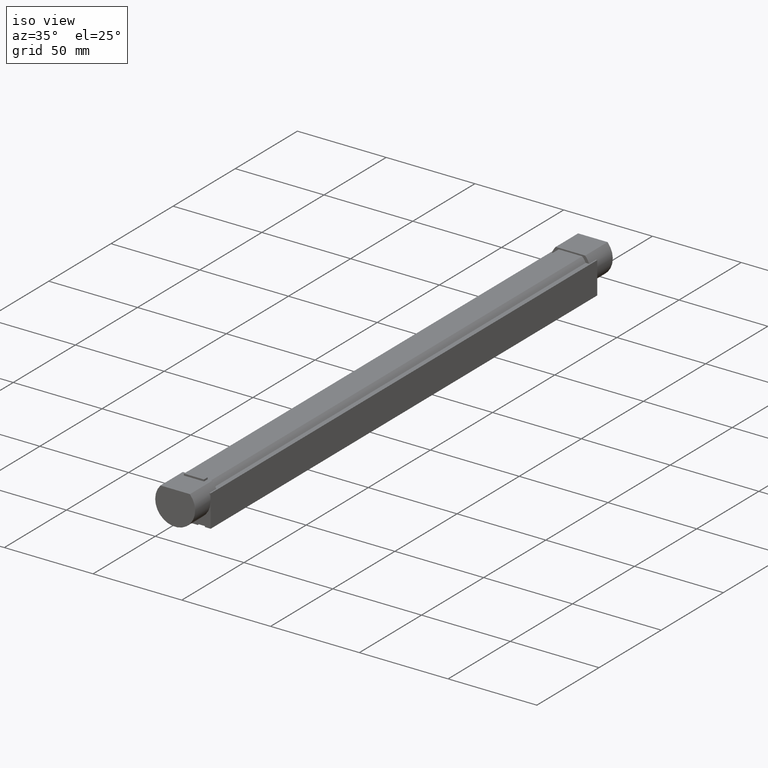
[diagram: clean part render]
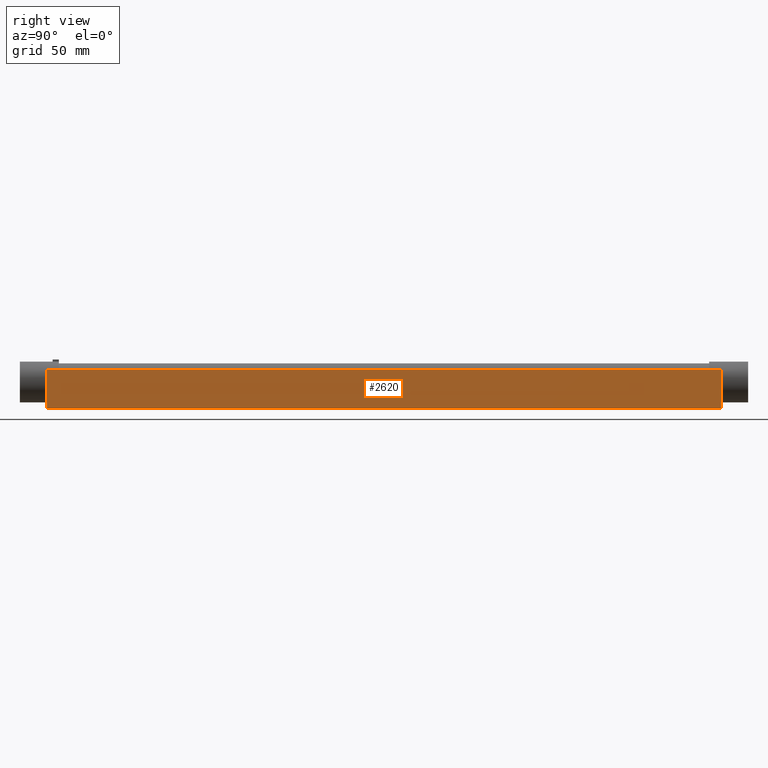
[diagram: tour spotlight — one face highlighted and labeled with its STEP entity id]
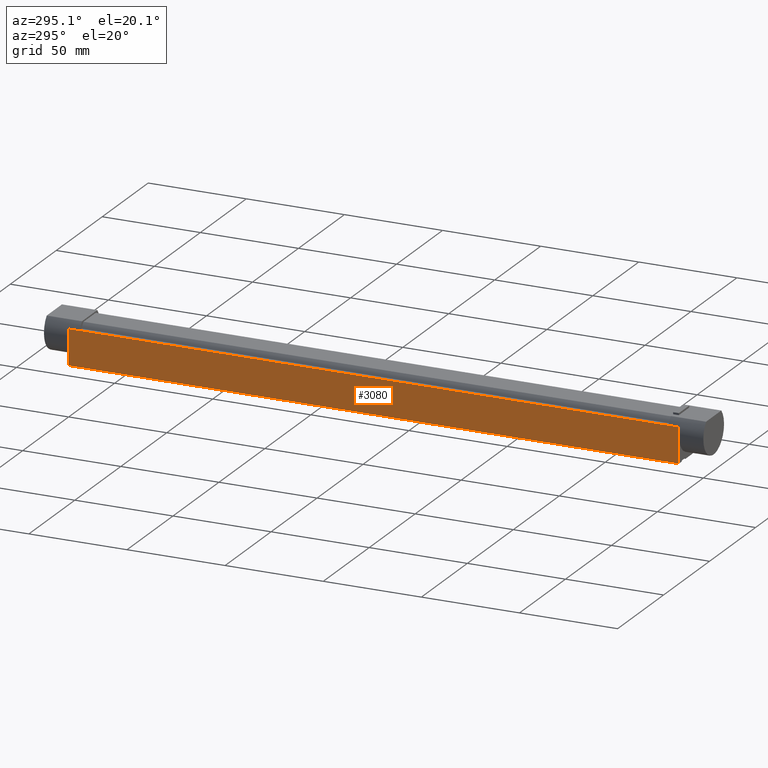
[diagram: tour spotlight — one face highlighted and labeled with its STEP entity id]
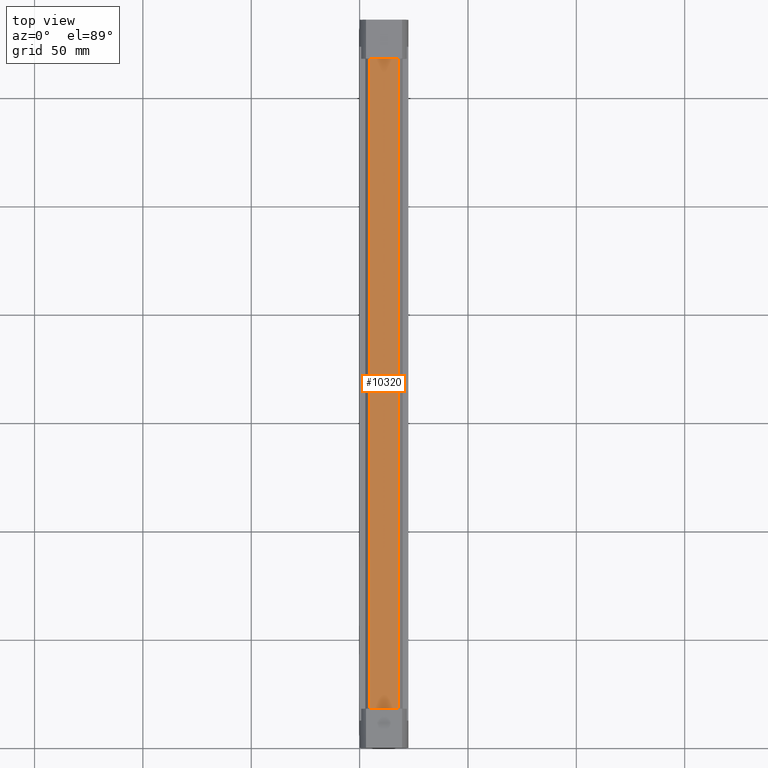
[diagram: tour spotlight — one face highlighted and labeled with its STEP entity id]
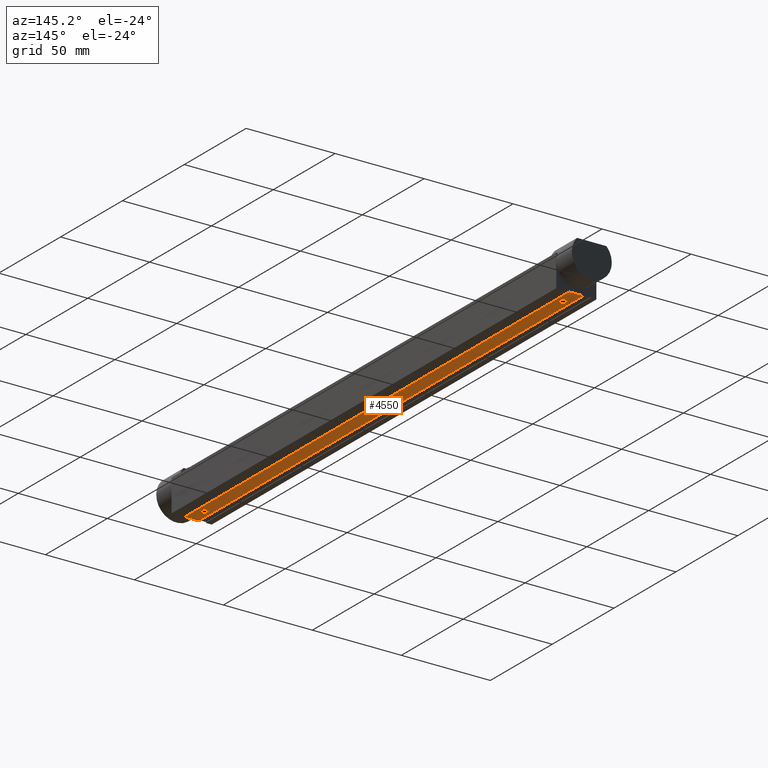
[diagram: tour spotlight — one face highlighted and labeled with its STEP entity id]
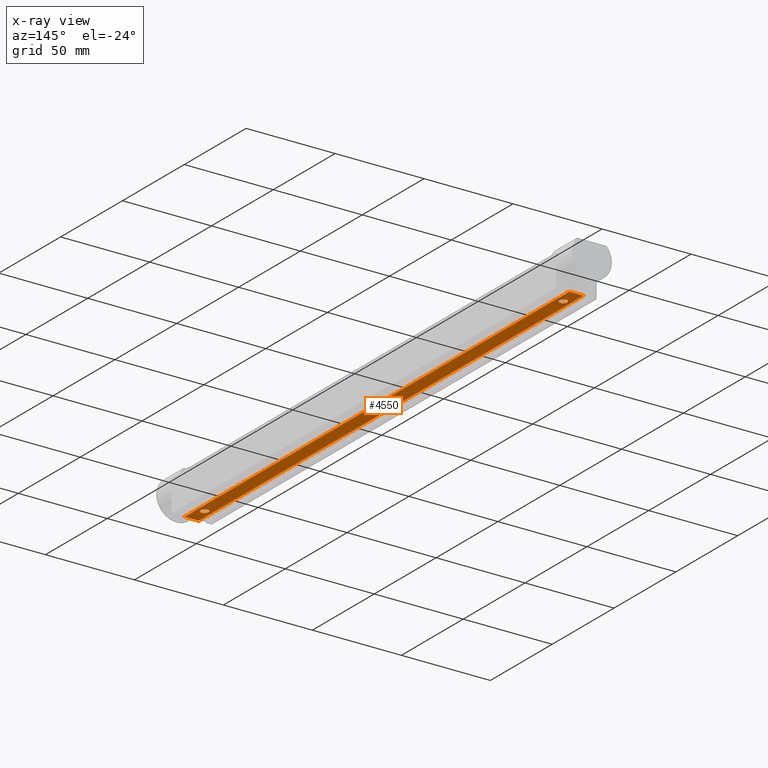
[diagram: x-ray of the same camera — body ghosted, this tour face saturated]
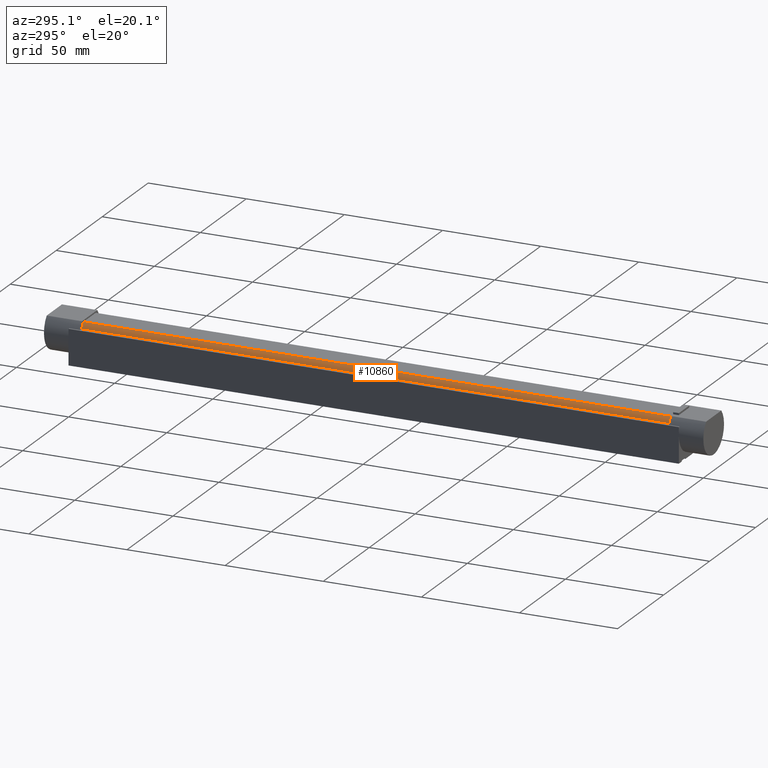
[diagram: tour spotlight — one face highlighted and labeled with its STEP entity id]
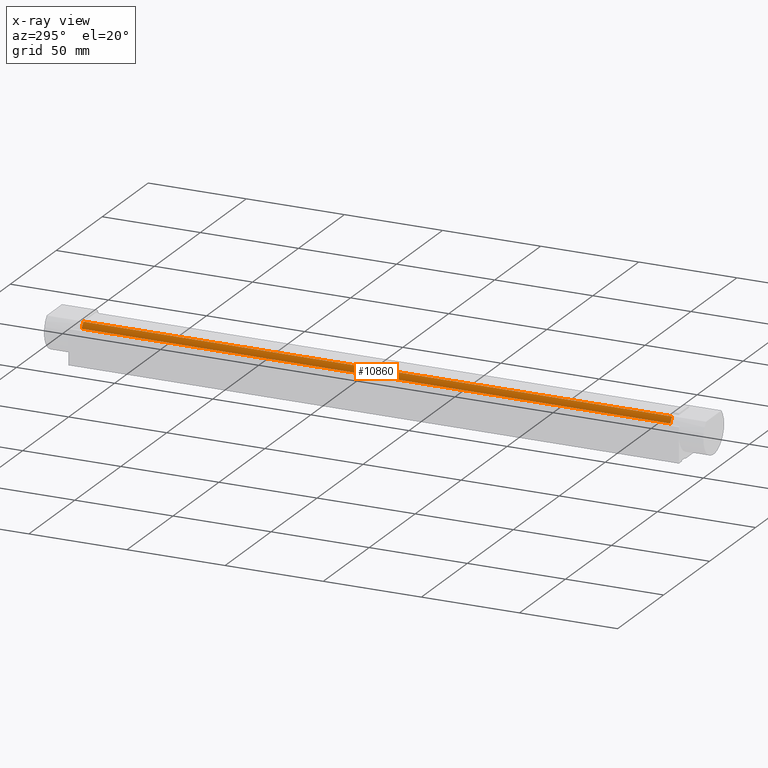
[diagram: x-ray of the same camera — body ghosted, this tour face saturated]
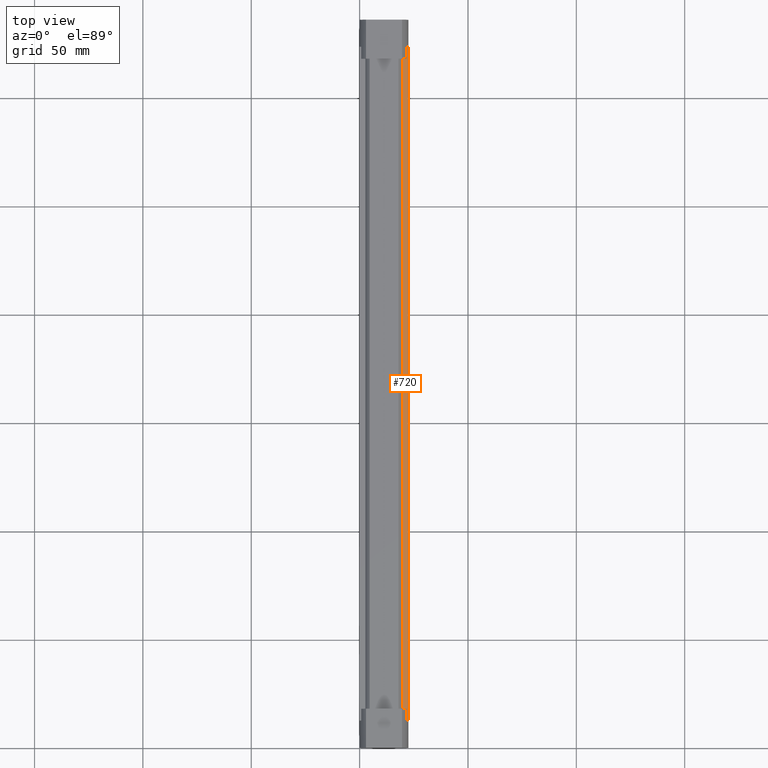
[diagram: tour spotlight — one face highlighted and labeled with its STEP entity id]
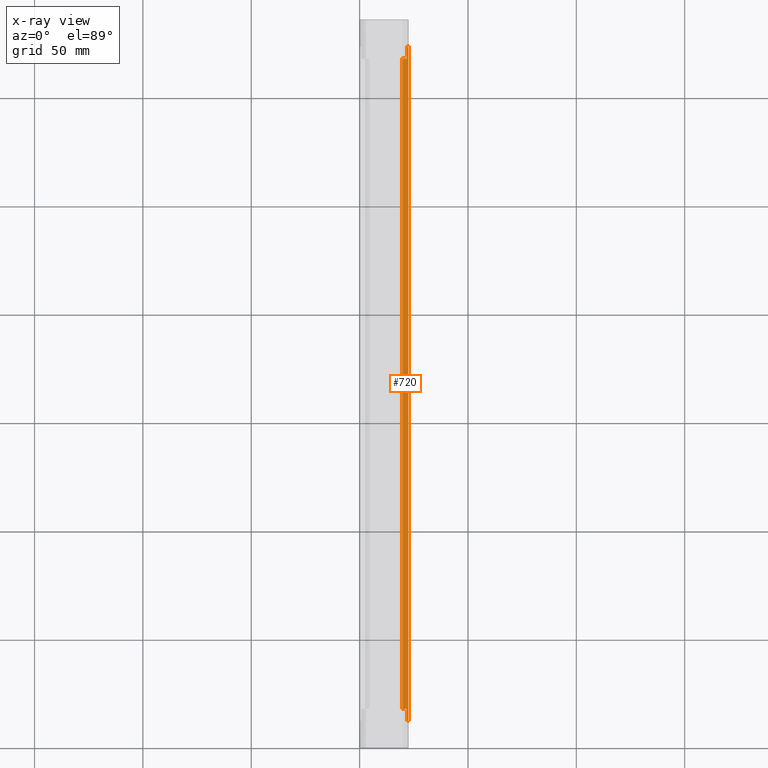
[diagram: x-ray of the same camera — body ghosted, this tour face saturated]
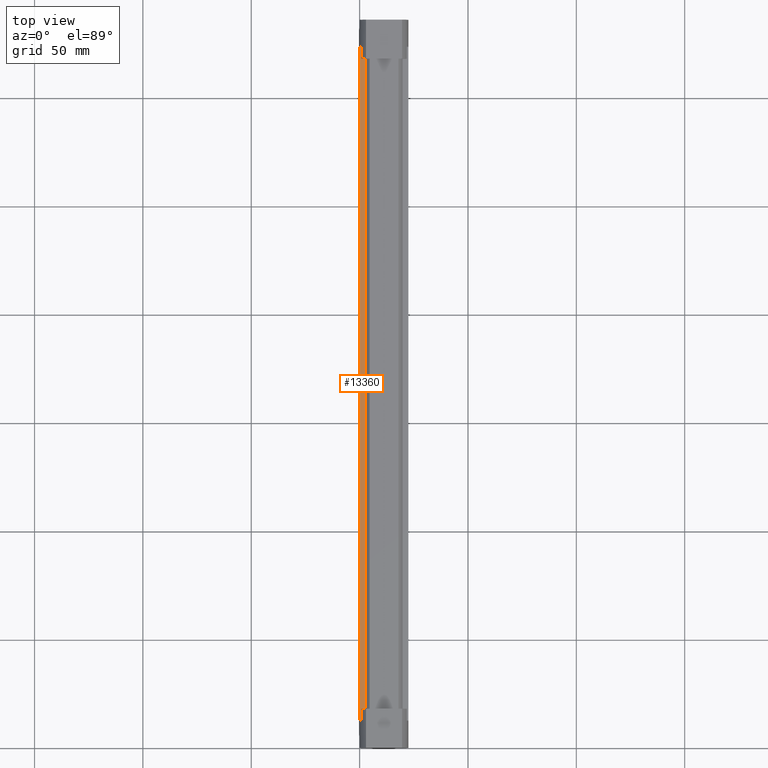
[diagram: tour spotlight — one face highlighted and labeled with its STEP entity id]
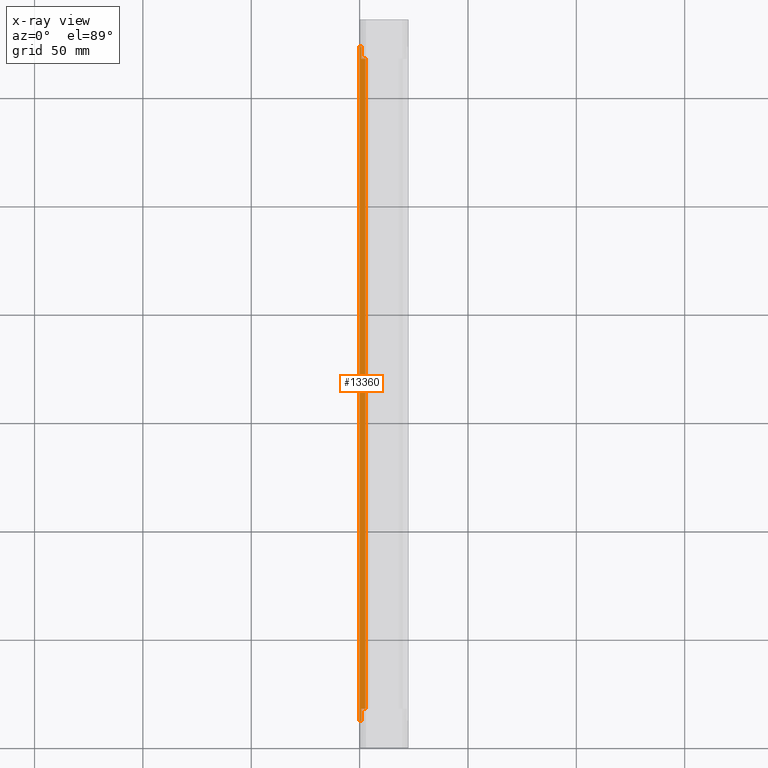
[diagram: x-ray of the same camera — body ghosted, this tour face saturated]
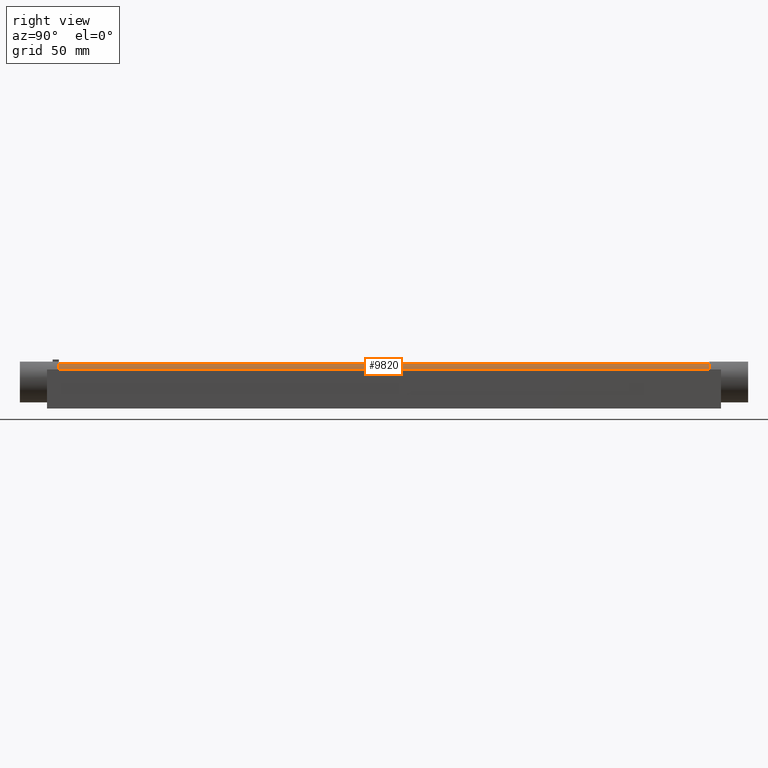
[diagram: tour spotlight — one face highlighted and labeled with its STEP entity id]
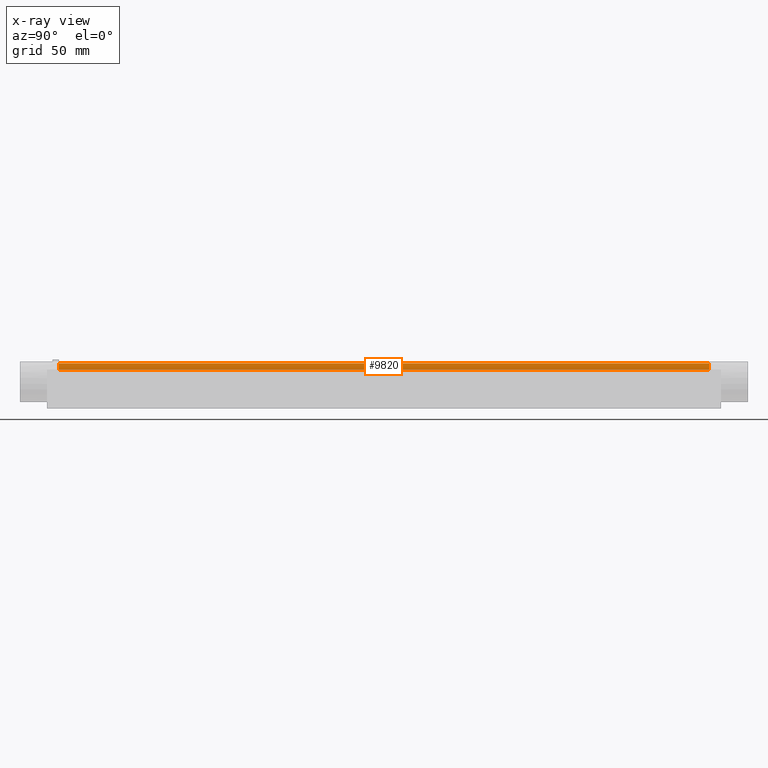
[diagram: x-ray of the same camera — body ghosted, this tour face saturated]
A machine part: a face-by-face anatomy tour. The part has 40 B-rep faces; the first image is the clean iso view, then the 8 largest visible faces are spotlighted one at a time (largest first), each with its STEP entity span.

Face 1 — right view, entity #2620. In plain terms, the highlighted planar face has unit normal (-1, 0, 0).
Definition (entity closure, byte-faithful):
#100=CARTESIAN_POINT('',(12.5,11.25,-22.));
#110=VERTEX_POINT('',#100);
#600=CARTESIAN_POINT('',(323.5,11.25,-22.));
#610=VERTEX_POINT('',#600);
#640=CARTESIAN_POINT('',(0.,11.25,-22.));
#650=DIRECTION('',(-1.,0.,0.));
#660=VECTOR('',#650,1.);
#670=LINE('',#640,#660);
#680=EDGE_CURVE('',#610,#110,#670,.T.);
#1630=CARTESIAN_POINT('',(12.5,11.2492250572074,-18.));
#1640=VERTEX_POINT('',#1630);
#1680=CARTESIAN_POINT('',(12.5,11.25,0.));
#1690=DIRECTION('',(0.,0.,-1.));
#1700=VECTOR('',#1690,1.);
#1710=LINE('',#1680,#1700);
#1720=EDGE_CURVE('',#1640,#110,#1710,.T.);
#2310=CARTESIAN_POINT('',(106.55,11.25,-20.8));
#2320=DIRECTION('',(0.,-1.,0.));
#2330=DIRECTION('',(0.,0.,-1.));
#2340=AXIS2_PLACEMENT_3D('',#2310,#2320,#2330);
#2350=PLANE('',#2340);
#2360=CARTESIAN_POINT('',(323.5,11.25,0.));
#2370=DIRECTION('',(0.,0.,-1.));
#2380=VECTOR('',#2370,1.);
#2390=LINE('',#2360,#2380);
#2400=CARTESIAN_POINT('',(323.5,11.25,-18.));
#2410=VERTEX_POINT('',#2400);
#2420=EDGE_CURVE('',#2410,#610,#2390,.T.);
#2430=ORIENTED_EDGE('',*,*,#2420,.T.);
#2440=CARTESIAN_POINT('',(323.5,11.25,-4.));
#2450=VERTEX_POINT('',#2440);
#2460=EDGE_CURVE('',#2450,#2410,#2390,.T.);
#2470=ORIENTED_EDGE('',*,*,#2460,.T.);
#2480=CARTESIAN_POINT('',(0.,11.25,-4.));
#2490=DIRECTION('',(-1.,0.,0.));
#2500=VECTOR('',#2490,1.);
#2510=LINE('',#2480,#2500);
#2520=CARTESIAN_POINT('',(12.5,11.25,-4.));
#2530=VERTEX_POINT('',#2520);
#2540=EDGE_CURVE('',#2450,#2530,#2510,.T.);
#2550=ORIENTED_EDGE('',*,*,#2540,.F.);
#2560=EDGE_CURVE('',#2530,#1640,#1710,.T.);
#2570=ORIENTED_EDGE('',*,*,#2560,.F.);
#2580=ORIENTED_EDGE('',*,*,#1720,.F.);
#2590=ORIENTED_EDGE('',*,*,#680,.T.);
#2600=EDGE_LOOP('',(#2590,#2580,#2570,#2550,#2470,#2430));
#2610=FACE_OUTER_BOUND('',#2600,.T.);
#2620=ADVANCED_FACE('',(#2610),#2350,.F.);

Face 2 — auxiliary view, entity #3080. In plain terms, the highlighted planar face has unit normal (1, 0, 0).
Definition (entity closure, byte-faithful):
#850=CARTESIAN_POINT('',(12.5,-11.25,0.));
#860=DIRECTION('',(0.,0.,1.));
#870=VECTOR('',#860,1.);
#880=LINE('',#850,#870);
#890=CARTESIAN_POINT('',(12.5,-11.25,-22.));
#900=VERTEX_POINT('',#890);
#910=CARTESIAN_POINT('',(12.5,-11.2492250572074,-18.));
#920=VERTEX_POINT('',#910);
#930=EDGE_CURVE('',#900,#920,#880,.T.);
#2700=CARTESIAN_POINT('',(106.55,-11.25,-4.50000000000001));
#2710=DIRECTION('',(0.,1.,0.));
#2720=DIRECTION('',(0.,0.,1.));
#2730=AXIS2_PLACEMENT_3D('',#2700,#2710,#2720);
#2740=PLANE('',#2730);
#2750=ORIENTED_EDGE('',*,*,#930,.F.);
#2760=CARTESIAN_POINT('',(12.5,-11.25,-4.));
#2770=VERTEX_POINT('',#2760);
#2780=EDGE_CURVE('',#920,#2770,#880,.T.);
#2790=ORIENTED_EDGE('',*,*,#2780,.F.);
#2800=CARTESIAN_POINT('',(0.,-11.25,-4.));
#2810=DIRECTION('',(-1.,0.,0.));
#2820=VECTOR('',#2810,1.);
#2830=LINE('',#2800,#2820);
#2840=CARTESIAN_POINT('',(323.5,-11.25,-4.));
#2850=VERTEX_POINT('',#2840);
#2860=EDGE_CURVE('',#2850,#2770,#2830,.T.);
#2870=ORIENTED_EDGE('',*,*,#2860,.T.);
#2880=CARTESIAN_POINT('',(323.5,-11.25,0.));
#2890=DIRECTION('',(0.,0.,1.));
#2900=VECTOR('',#2890,1.);
#2910=LINE('',#2880,#2900);
#2920=CARTESIAN_POINT('',(323.5,-11.25,-18.));
#2930=VERTEX_POINT('',#2920);
#2940=EDGE_CURVE('',#2930,#2850,#2910,.T.);
#2950=ORIENTED_EDGE('',*,*,#2940,.T.);
#2960=CARTESIAN_POINT('',(323.5,-11.25,-22.));
#2970=VERTEX_POINT('',#2960);
#2980=EDGE_CURVE('',#2970,#2930,#2910,.T.);
#2990=ORIENTED_EDGE('',*,*,#2980,.T.);
#3000=CARTESIAN_POINT('',(0.,-11.25,-22.));
#3010=DIRECTION('',(-1.,0.,0.));
#3020=VECTOR('',#3010,1.);
#3030=LINE('',#3000,#3020);
#3040=EDGE_CURVE('',#2970,#900,#3030,.T.);
#3050=ORIENTED_EDGE('',*,*,#3040,.F.);
#3060=EDGE_LOOP('',(#3050,#2990,#2950,#2870,#2790,#2750));
#3070=FACE_OUTER_BOUND('',#3060,.T.);
#3080=ADVANCED_FACE('',(#3070),#2740,.F.);

Face 3 — top view, entity #10320. In plain terms, the highlighted planar face has unit normal (0, 0, 1).
Definition (entity closure, byte-faithful):
#5700=CARTESIAN_POINT('',(18.0000000000001,6.63400331624879,-24.8));
#5710=VERTEX_POINT('',#5700);
#6100=CARTESIAN_POINT('',(18.0000000000001,-6.63400331624879,-24.8));
#6110=VERTEX_POINT('',#6100);
#6140=CARTESIAN_POINT('',(18.0000000000001,0.,-24.8));
#6150=DIRECTION('',(0.,-1.,0.));
#6160=VECTOR('',#6150,1.);
#6170=LINE('',#6140,#6160);
#6180=EDGE_CURVE('',#5710,#6110,#6170,.T.);
#9640=CARTESIAN_POINT('',(98.,6.63400331624879,-24.8));
#9650=DIRECTION('',(-1.,0.,0.));
#9660=VECTOR('',#9650,1.);
#9670=LINE('',#9640,#9660);
#9680=CARTESIAN_POINT('',(318.,6.6340033162488,-24.8));
#9690=VERTEX_POINT('',#9680);
#9700=EDGE_CURVE('',#9690,#5710,#9670,.T.);
#10090=CARTESIAN_POINT('',(98.,6.3,-24.8));
#10100=DIRECTION('',(0.,0.,-1.));
#10110=DIRECTION('',(-1.,0.,0.));
#10120=AXIS2_PLACEMENT_3D('',#10090,#10100,#10110);
#10130=PLANE('',#10120);
#10140=CARTESIAN_POINT('',(98.,-6.63400331624879,-24.8));
#10150=DIRECTION('',(-1.,0.,0.));
#10160=VECTOR('',#10150,1.);
#10170=LINE('',#10140,#10160);
#10180=CARTESIAN_POINT('',(318.,-6.63400331624879,-24.8));
#10190=VERTEX_POINT('',#10180);
#10200=EDGE_CURVE('',#10190,#6110,#10170,.T.);
#10210=ORIENTED_EDGE('',*,*,#10200,.T.);
#10220=CARTESIAN_POINT('',(318.,0.,-24.8));
#10230=DIRECTION('',(0.,1.,0.));
#10240=VECTOR('',#10230,1.);
#10250=LINE('',#10220,#10240);
#10260=EDGE_CURVE('',#10190,#9690,#10250,.T.);
#10270=ORIENTED_EDGE('',*,*,#10260,.F.);
#10280=ORIENTED_EDGE('',*,*,#9700,.F.);
#10290=ORIENTED_EDGE('',*,*,#6180,.F.);
#10300=EDGE_LOOP('',(#10290,#10280,#10270,#10210));
#10310=FACE_OUTER_BOUND('',#10300,.T.);
#10320=ADVANCED_FACE('',(#10310),#10130,.T.);

Face 4 — auxiliary view, entity #4550. An x-ray twin of the same camera follows (body ghosted, this face saturated) — the face is partly hidden behind the body. In plain terms, the highlighted planar face has unit normal (-0, -0, 1).
Definition (entity closure, byte-faithful):
#3860=CARTESIAN_POINT('',(183.5,-4.00000000000001,-4.));
#3870=DIRECTION('',(-0.,-0.,-1.));
#3880=DIRECTION('',(0.,-1.,0.));
#3890=AXIS2_PLACEMENT_3D('',#3860,#3870,#3880);
#3900=PLANE('',#3890);
#3910=CARTESIAN_POINT('',(323.5,-3.75,-4.));
#3920=DIRECTION('',(0.,1.,0.));
#3930=VECTOR('',#3920,1.);
#3940=LINE('',#3910,#3930);
#3950=CARTESIAN_POINT('',(323.5,-4.00000000000001,-4.));
#3960=VERTEX_POINT('',#3950);
#3970=CARTESIAN_POINT('',(323.5,4.,-4.));
#3980=VERTEX_POINT('',#3970);
#3990=EDGE_CURVE('',#3960,#3980,#3940,.T.);
#4000=ORIENTED_EDGE('',*,*,#3990,.T.);
#4010=CARTESIAN_POINT('',(0.,-4.00000000000001,-4.));
#4020=DIRECTION('',(-1.,0.,0.));
#4030=VECTOR('',#4020,1.);
#4040=LINE('',#4010,#4030);
#4050=CARTESIAN_POINT('',(12.5,-4.00000000000001,-4.));
#4060=VERTEX_POINT('',#4050);
#4070=EDGE_CURVE('',#3960,#4060,#4040,.T.);
#4080=ORIENTED_EDGE('',*,*,#4070,.F.);
#4090=CARTESIAN_POINT('',(12.5,0.,-4.));
#4100=DIRECTION('',(0.,-1.,0.));
#4110=VECTOR('',#4100,1.);
#4120=LINE('',#4090,#4110);
#4130=CARTESIAN_POINT('',(12.5,4.,-4.));
#4140=VERTEX_POINT('',#4130);
#4150=EDGE_CURVE('',#4140,#4060,#4120,.T.);
#4160=ORIENTED_EDGE('',*,*,#4150,.T.);
#4170=CARTESIAN_POINT('',(0.,4.,-4.));
#4180=DIRECTION('',(-1.,0.,0.));
#4190=VECTOR('',#4180,1.);
#4200=LINE('',#4170,#4190);
#4210=EDGE_CURVE('',#3980,#4140,#4200,.T.);
#4220=ORIENTED_EDGE('',*,*,#4210,.T.);
#4230=EDGE_LOOP('',(#4220,#4160,#4080,#4000));
#4240=FACE_OUTER_BOUND('',#4230,.T.);
#4250=CARTESIAN_POINT('',(23.0000000000001,-3.46944695195361E-15,-4.));
#4260=DIRECTION('',(0.,0.,-1.));
#4270=DIRECTION('',(-1.,-2.3970724395316E-16,0.));
#4280=AXIS2_PLACEMENT_3D('',#4250,#4260,#4270);
#4290=CIRCLE('',#4280,2.2);
#4300=CARTESIAN_POINT('',(25.2000000000001,-2.67266871944424E-15,-4.));
#4310=VERTEX_POINT('',#4300);
#4320=CARTESIAN_POINT('',(20.8000000000001,-3.99680288865056E-15,-4.));
#4330=VERTEX_POINT('',#4320);
#4340=EDGE_CURVE('',#4310,#4330,#4290,.T.);
#4350=ORIENTED_EDGE('',*,*,#4340,.T.);
#4360=EDGE_CURVE('',#4330,#4310,#4290,.T.);
#4370=ORIENTED_EDGE('',*,*,#4360,.T.);
#4380=EDGE_LOOP('',(#4370,#4350));
#4390=FACE_BOUND('',#4380,.T.);
#4400=CARTESIAN_POINT('',(313.,-3.46944695195361E-15,-4.));
#4410=DIRECTION('',(0.,0.,-1.));
#4420=DIRECTION('',(1.,-3.78485122031329E-17,0.));
#4430=AXIS2_PLACEMENT_3D('',#4400,#4410,#4420);
#4440=CIRCLE('',#4430,2.2);
#4450=CARTESIAN_POINT('',(315.2,-3.5527136788005E-15,-4.));
#4460=VERTEX_POINT('',#4450);
#4470=CARTESIAN_POINT('',(310.8,-3.65560252091914E-15,-4.));
#4480=VERTEX_POINT('',#4470);
#4490=EDGE_CURVE('',#4460,#4480,#4440,.T.);
#4500=ORIENTED_EDGE('',*,*,#4490,.T.);
#4510=EDGE_CURVE('',#4480,#4460,#4440,.T.);
#4520=ORIENTED_EDGE('',*,*,#4510,.T.);
#4530=EDGE_LOOP('',(#4520,#4500));
#4540=FACE_BOUND('',#4530,.T.);
#4550=ADVANCED_FACE('',(#4240,#4390,#4540),#3900,.F.);

Face 5 — auxiliary view, entity #10860. An x-ray twin of the same camera follows (body ghosted, this face saturated) — the face is partly hidden behind the body. In plain terms, the highlighted cylindrical surface (edge-blend (fillet) strip) has radius 9.5 mm, axis along (0, -1, 0).
Definition (entity closure, byte-faithful):
#6010=CARTESIAN_POINT('',(18.0000000000001,-8.61684396980704,-22.));
#6020=VERTEX_POINT('',#6010);
#6050=CARTESIAN_POINT('',(18.0000000000001,0.,-18.));
#6060=DIRECTION('',(-1.,0.,0.));
#6070=DIRECTION('',(0.,0.,1.));
#6080=AXIS2_PLACEMENT_3D('',#6050,#6060,#6070);
#6090=CIRCLE('',#6080,9.5);
#6100=CARTESIAN_POINT('',(18.0000000000001,-6.63400331624879,-24.8));
#6110=VERTEX_POINT('',#6100);
#6120=EDGE_CURVE('',#6110,#6020,#6090,.T.);
#9580=CARTESIAN_POINT('',(98.,0.,-18.));
#9590=DIRECTION('',(-1.,0.,0.));
#9600=DIRECTION('',(0.,0.,1.));
#9610=AXIS2_PLACEMENT_3D('',#9580,#9590,#9600);
#9620=CYLINDRICAL_SURFACE('',#9610,9.5);
#10140=CARTESIAN_POINT('',(98.,-6.63400331624879,-24.8));
#10150=DIRECTION('',(-1.,0.,0.));
#10160=VECTOR('',#10150,1.);
#10170=LINE('',#10140,#10160);
#10180=CARTESIAN_POINT('',(318.,-6.63400331624879,-24.8));
#10190=VERTEX_POINT('',#10180);
#10200=EDGE_CURVE('',#10190,#6110,#10170,.T.);
#10670=ORIENTED_EDGE('',*,*,#6120,.F.);
#10680=CARTESIAN_POINT('',(98.,-8.61684396980704,-22.));
#10690=DIRECTION('',(-1.,0.,0.));
#10700=VECTOR('',#10690,1.);
#10710=LINE('',#10680,#10700);
#10720=CARTESIAN_POINT('',(318.,-8.61684396980704,-22.));
#10730=VERTEX_POINT('',#10720);
#10740=EDGE_CURVE('',#10730,#6020,#10710,.T.);
#10750=ORIENTED_EDGE('',*,*,#10740,.T.);
#10760=CARTESIAN_POINT('',(318.,0.,-18.));
#10770=DIRECTION('',(-1.,0.,0.));
#10780=DIRECTION('',(0.,0.,1.));
#10790=AXIS2_PLACEMENT_3D('',#10760,#10770,#10780);
#10800=CIRCLE('',#10790,9.5);
#10810=EDGE_CURVE('',#10190,#10730,#10800,.T.);
#10820=ORIENTED_EDGE('',*,*,#10810,.T.);
#10830=ORIENTED_EDGE('',*,*,#10200,.F.);
#10840=EDGE_LOOP('',(#10830,#10820,#10750,#10670));
#10850=FACE_OUTER_BOUND('',#10840,.T.);
#10860=ADVANCED_FACE('',(#10850),#9620,.T.);

Face 6 — top view, entity #720. An x-ray twin of the same camera follows (body ghosted, this face saturated) — the face is partly hidden behind the body. In plain terms, the highlighted planar face has unit normal (0, 0, -1).
Definition (entity closure, byte-faithful):
#10=CARTESIAN_POINT('',(106.55,-10.05,-22.));
#20=DIRECTION('',(0.,0.,1.));
#30=DIRECTION('',(1.,0.,0.));
#40=AXIS2_PLACEMENT_3D('',#10,#20,#30);
#50=PLANE('',#40);
#60=CARTESIAN_POINT('',(12.5,0.,-22.));
#70=DIRECTION('',(0.,-1.,0.));
#80=VECTOR('',#70,1.);
#90=LINE('',#60,#80);
#100=CARTESIAN_POINT('',(12.5,11.25,-22.));
#110=VERTEX_POINT('',#100);
#120=CARTESIAN_POINT('',(12.5,10.514041296652,-22.));
#130=VERTEX_POINT('',#120);
#140=EDGE_CURVE('',#110,#130,#90,.T.);
#150=ORIENTED_EDGE('',*,*,#140,.F.);
#160=CARTESIAN_POINT('',(13.7200045691454,10.514041296652,-22.));
#170=DIRECTION('',(-1.,0.,0.));
#180=VECTOR('',#170,1.);
#190=LINE('',#160,#180);
#200=CARTESIAN_POINT('',(18.0000000000001,10.514041296652,-22.));
#210=VERTEX_POINT('',#200);
#220=EDGE_CURVE('',#210,#130,#190,.T.);
#230=ORIENTED_EDGE('',*,*,#220,.T.);
#240=CARTESIAN_POINT('',(18.0000000000001,0.,-22.));
#250=DIRECTION('',(0.,1.,0.));
#260=VECTOR('',#250,1.);
#270=LINE('',#240,#260);
#280=CARTESIAN_POINT('',(18.0000000000001,8.61684396980705,-22.));
#290=VERTEX_POINT('',#280);
#300=EDGE_CURVE('',#290,#210,#270,.T.);
#310=ORIENTED_EDGE('',*,*,#300,.T.);
#320=CARTESIAN_POINT('',(98.,8.61684396980704,-22.));
#330=DIRECTION('',(-1.,0.,0.));
#340=VECTOR('',#330,1.);
#350=LINE('',#320,#340);
#360=CARTESIAN_POINT('',(318.,8.61684396980704,-22.));
#370=VERTEX_POINT('',#360);
#380=EDGE_CURVE('',#370,#290,#350,.T.);
#390=ORIENTED_EDGE('',*,*,#380,.T.);
#400=CARTESIAN_POINT('',(318.,0.,-22.));
#410=DIRECTION('',(0.,-1.,0.));
#420=VECTOR('',#410,1.);
#430=LINE('',#400,#420);
#440=CARTESIAN_POINT('',(318.,10.514041296652,-22.));
#450=VERTEX_POINT('',#440);
#460=EDGE_CURVE('',#450,#370,#430,.T.);
#470=ORIENTED_EDGE('',*,*,#460,.T.);
#480=CARTESIAN_POINT('',(322.279995430855,10.514041296652,-22.));
#490=DIRECTION('',(1.,0.,0.));
#500=VECTOR('',#490,1.);
#510=LINE('',#480,#500);
#520=CARTESIAN_POINT('',(323.5,10.514041296652,-22.));
#530=VERTEX_POINT('',#520);
#540=EDGE_CURVE('',#450,#530,#510,.T.);
#550=ORIENTED_EDGE('',*,*,#540,.F.);
#560=CARTESIAN_POINT('',(323.5,0.,-22.));
#570=DIRECTION('',(0.,-1.,0.));
#580=VECTOR('',#570,1.);
#590=LINE('',#560,#580);
#600=CARTESIAN_POINT('',(323.5,11.25,-22.));
#610=VERTEX_POINT('',#600);
#620=EDGE_CURVE('',#610,#530,#590,.T.);
#630=ORIENTED_EDGE('',*,*,#620,.T.);
#640=CARTESIAN_POINT('',(0.,11.25,-22.));
#650=DIRECTION('',(-1.,0.,0.));
#660=VECTOR('',#650,1.);
#670=LINE('',#640,#660);
#680=EDGE_CURVE('',#610,#110,#670,.T.);
#690=ORIENTED_EDGE('',*,*,#680,.F.);
#700=EDGE_LOOP('',(#690,#630,#550,#470,#390,#310,#230,#150));
#710=FACE_OUTER_BOUND('',#700,.T.);
#720=ADVANCED_FACE('',(#710),#50,.F.);

Face 7 — top view, entity #13360. An x-ray twin of the same camera follows (body ghosted, this face saturated) — the face is partly hidden behind the body. In plain terms, the highlighted planar face has unit normal (0, 0, -1).
Definition (entity closure, byte-faithful):
#60=CARTESIAN_POINT('',(12.5,0.,-22.));
#70=DIRECTION('',(0.,-1.,0.));
#80=VECTOR('',#70,1.);
#90=LINE('',#60,#80);
#240=CARTESIAN_POINT('',(18.0000000000001,0.,-22.));
#250=DIRECTION('',(0.,1.,0.));
#260=VECTOR('',#250,1.);
#270=LINE('',#240,#260);
#400=CARTESIAN_POINT('',(318.,0.,-22.));
#410=DIRECTION('',(0.,-1.,0.));
#420=VECTOR('',#410,1.);
#430=LINE('',#400,#420);
#560=CARTESIAN_POINT('',(323.5,0.,-22.));
#570=DIRECTION('',(0.,-1.,0.));
#580=VECTOR('',#570,1.);
#590=LINE('',#560,#580);
#890=CARTESIAN_POINT('',(12.5,-11.25,-22.));
#900=VERTEX_POINT('',#890);
#950=CARTESIAN_POINT('',(12.5,-10.514041296652,-22.));
#960=VERTEX_POINT('',#950);
#970=EDGE_CURVE('',#960,#900,#90,.T.);
#2960=CARTESIAN_POINT('',(323.5,-11.25,-22.));
#2970=VERTEX_POINT('',#2960);
#3000=CARTESIAN_POINT('',(0.,-11.25,-22.));
#3010=DIRECTION('',(-1.,0.,0.));
#3020=VECTOR('',#3010,1.);
#3030=LINE('',#3000,#3020);
#3040=EDGE_CURVE('',#2970,#900,#3030,.T.);
#5970=CARTESIAN_POINT('',(18.0000000000001,-10.514041296652,-22.));
#5980=VERTEX_POINT('',#5970);
#6010=CARTESIAN_POINT('',(18.0000000000001,-8.61684396980704,-22.));
#6020=VERTEX_POINT('',#6010);
#6030=EDGE_CURVE('',#5980,#6020,#270,.T.);
#8890=CARTESIAN_POINT('',(13.7200045691454,-10.514041296652,-22.));
#8900=DIRECTION('',(-1.,0.,0.));
#8910=VECTOR('',#8900,1.);
#8920=LINE('',#8890,#8910);
#8930=EDGE_CURVE('',#5980,#960,#8920,.T.);
#10450=CARTESIAN_POINT('',(323.5,-10.514041296652,-22.));
#10460=VERTEX_POINT('',#10450);
#10470=EDGE_CURVE('',#10460,#2970,#590,.T.);
#10680=CARTESIAN_POINT('',(98.,-8.61684396980704,-22.));
#10690=DIRECTION('',(-1.,0.,0.));
#10700=VECTOR('',#10690,1.);
#10710=LINE('',#10680,#10700);
#10720=CARTESIAN_POINT('',(318.,-8.61684396980704,-22.));
#10730=VERTEX_POINT('',#10720);
#10740=EDGE_CURVE('',#10730,#6020,#10710,.T.);
#11340=CARTESIAN_POINT('',(318.,-10.514041296652,-22.));
#11350=VERTEX_POINT('',#11340);
#11380=CARTESIAN_POINT('',(322.279995430855,-10.514041296652,-22.));
#11390=DIRECTION('',(1.,0.,0.));
#11400=VECTOR('',#11390,1.);
#11410=LINE('',#11380,#11400);
#11420=EDGE_CURVE('',#11350,#10460,#11410,.T.);
#12420=EDGE_CURVE('',#10730,#11350,#430,.T.);
#13210=CARTESIAN_POINT('',(246.55,-10.05,-22.));
#13220=DIRECTION('',(0.,0.,1.));
#13230=DIRECTION('',(1.,0.,0.));
#13240=AXIS2_PLACEMENT_3D('',#13210,#13220,#13230);
#13250=PLANE('',#13240);
#13260=ORIENTED_EDGE('',*,*,#12420,.T.);
#13270=ORIENTED_EDGE('',*,*,#10740,.F.);
#13280=ORIENTED_EDGE('',*,*,#6030,.T.);
#13290=ORIENTED_EDGE('',*,*,#8930,.F.);
#13300=ORIENTED_EDGE('',*,*,#970,.F.);
#13310=ORIENTED_EDGE('',*,*,#3040,.T.);
#13320=ORIENTED_EDGE('',*,*,#10470,.T.);
#13330=ORIENTED_EDGE('',*,*,#11420,.T.);
#13340=EDGE_LOOP('',(#13330,#13320,#13310,#13300,#13290,#13280,#13270,
#13260));
#13350=FACE_OUTER_BOUND('',#13340,.T.);
#13360=ADVANCED_FACE('',(#13350),#13250,.F.);

Face 8 — right view, entity #9820. An x-ray twin of the same camera follows (body ghosted, this face saturated) — the face is partly hidden behind the body. In plain terms, the highlighted cylindrical surface (edge-blend (fillet) strip) has radius 9.5 mm, axis along (0, -1, 0).
Definition (entity closure, byte-faithful):
#280=CARTESIAN_POINT('',(18.0000000000001,8.61684396980705,-22.));
#290=VERTEX_POINT('',#280);
#320=CARTESIAN_POINT('',(98.,8.61684396980704,-22.));
#330=DIRECTION('',(-1.,0.,0.));
#340=VECTOR('',#330,1.);
#350=LINE('',#320,#340);
#360=CARTESIAN_POINT('',(318.,8.61684396980704,-22.));
#370=VERTEX_POINT('',#360);
#380=EDGE_CURVE('',#370,#290,#350,.T.);
#5650=CARTESIAN_POINT('',(18.0000000000001,0.,-18.));
#5660=DIRECTION('',(-1.,0.,0.));
#5670=DIRECTION('',(0.,0.,1.));
#5680=AXIS2_PLACEMENT_3D('',#5650,#5660,#5670);
#5690=CIRCLE('',#5680,9.5);
#5700=CARTESIAN_POINT('',(18.0000000000001,6.63400331624879,-24.8));
#5710=VERTEX_POINT('',#5700);
#5720=EDGE_CURVE('',#290,#5710,#5690,.T.);
#9580=CARTESIAN_POINT('',(98.,0.,-18.));
#9590=DIRECTION('',(-1.,0.,0.));
#9600=DIRECTION('',(0.,0.,1.));
#9610=AXIS2_PLACEMENT_3D('',#9580,#9590,#9600);
#9620=CYLINDRICAL_SURFACE('',#9610,9.5);
#9630=ORIENTED_EDGE('',*,*,#5720,.F.);
#9640=CARTESIAN_POINT('',(98.,6.63400331624879,-24.8));
#9650=DIRECTION('',(-1.,0.,0.));
#9660=VECTOR('',#9650,1.);
#9670=LINE('',#9640,#9660);
#9680=CARTESIAN_POINT('',(318.,6.6340033162488,-24.8));
#9690=VERTEX_POINT('',#9680);
#9700=EDGE_CURVE('',#9690,#5710,#9670,.T.);
#9710=ORIENTED_EDGE('',*,*,#9700,.T.);
#9720=CARTESIAN_POINT('',(318.,0.,-18.));
#9730=DIRECTION('',(-1.,0.,0.));
#9740=DIRECTION('',(0.,0.,1.));
#9750=AXIS2_PLACEMENT_3D('',#9720,#9730,#9740);
#9760=CIRCLE('',#9750,9.5);
#9770=EDGE_CURVE('',#370,#9690,#9760,.T.);
#9780=ORIENTED_EDGE('',*,*,#9770,.T.);
#9790=ORIENTED_EDGE('',*,*,#380,.F.);
#9800=EDGE_LOOP('',(#9790,#9780,#9710,#9630));
#9810=FACE_OUTER_BOUND('',#9800,.T.);
#9820=ADVANCED_FACE('',(#9810),#9620,.T.);